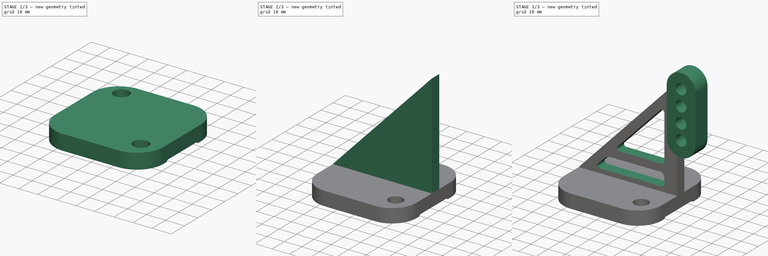
[diagram: build sequence overview — one tinted view per stage of 3, left to right]
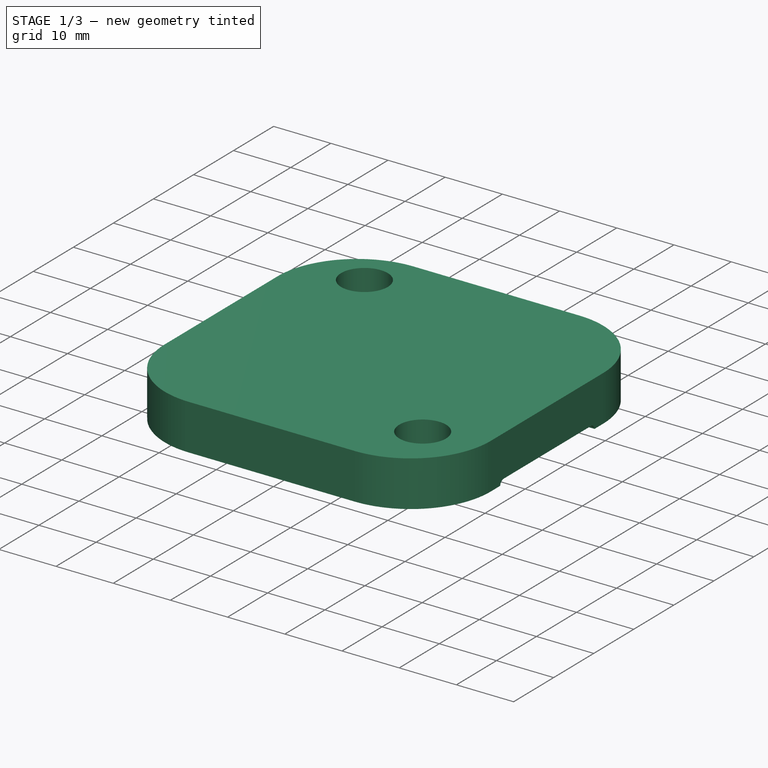
[diagram: stage 1 of 3 — iso view after this stage's code; geometry added in this stage tinted green]
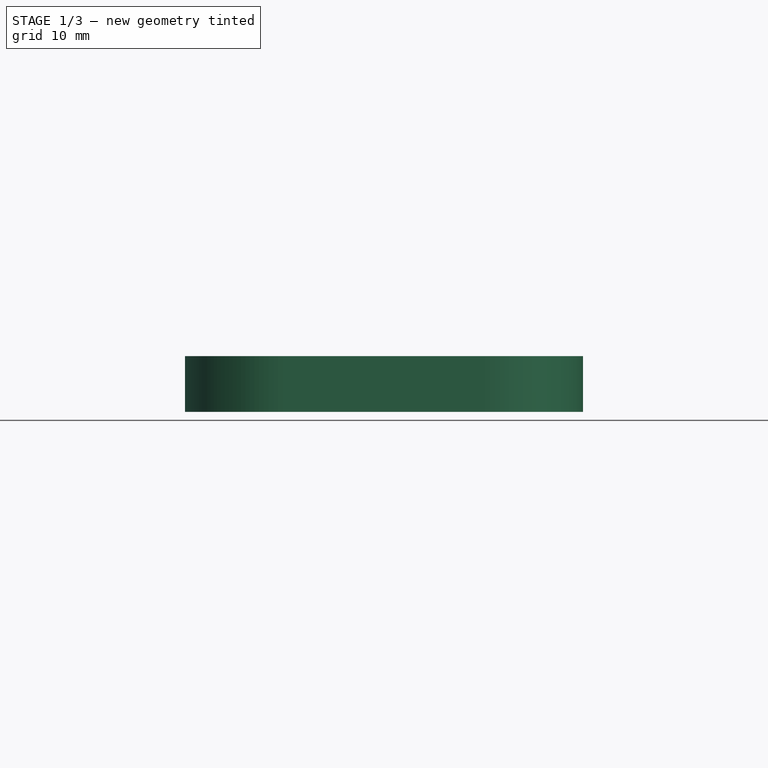
[diagram: stage 1 of 3 — front view after this stage's code; geometry added in this stage tinted green]
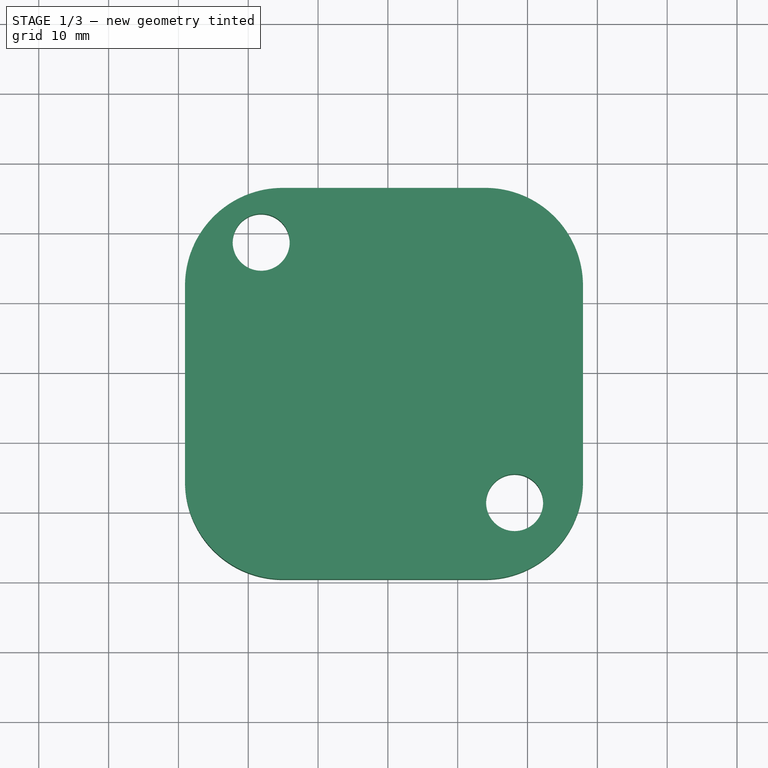
[diagram: stage 1 of 3 — top view after this stage's code; geometry added in this stage tinted green]
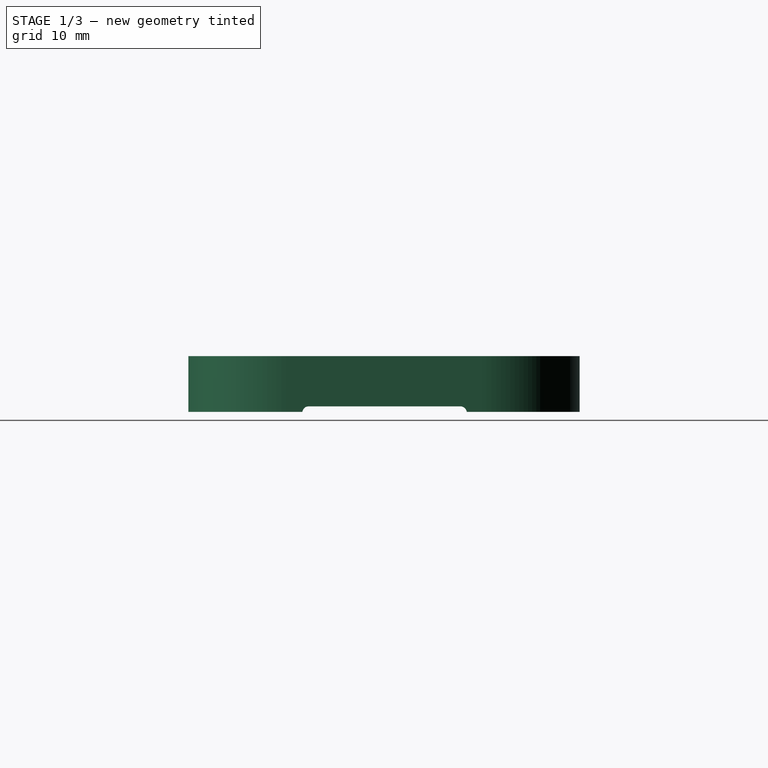
[diagram: stage 1 of 3 — right view after this stage's code; geometry added in this stage tinted green]
FCSTD DOCUMENT  (FreeCAD 0.21R33771 (Git))
Label: ex51
License: All rights reserved
LicenseURL: http://en.wikipedia.org/wiki/All_rights_reserved
objects: Sketcher::SketchObject×8, PartDesign::Pocket×5, PartDesign::Pad×3, PartDesign::Body×1
note: 25 computed .brp shape members not serialized (recipe doc carries the construction recipe); baked Part::Feature solids carry a one-line shape summary decoded from their .brp

FEATURE [Sketcher::SketchObject] Sketch
  FullyConstrained = false
  MapMode = 5
  Support = -> [XY_Plane]
  sketch-geometry (10):
    g0: ArcOfCircle CenterX=-15.0478 CenterY=12.4204 CenterZ=0 NormalX=0 NormalY=0 NormalZ=1 AngleXU=0 Radius=14.0127 StartAngle=1.5708 EndAngle=3.14159
    g1: LineSegment StartX=-15.0478 StartY=26.4331 StartZ=0 EndX=13.9331 EndY=26.4331 EndZ=0
    g2: ArcOfCircle CenterX=13.9331 CenterY=12.4204 CenterZ=0 NormalX=0 NormalY=0 NormalZ=1 AngleXU=0 Radius=14.0127 StartAngle=1e-16 EndAngle=1.5708
    g3: LineSegment StartX=27.9459 StartY=12.4204 StartZ=0 EndX=27.9459 EndY=-15.6051 EndZ=0
    g4: ArcOfCircle CenterX=13.9331 CenterY=-15.6051 CenterZ=0 NormalX=0 NormalY=0 NormalZ=1 AngleXU=0 Radius=14.0127 StartAngle=4.71239 EndAngle=6.28319
    g5: LineSegment StartX=13.9331 StartY=-29.6178 StartZ=0 EndX=-15.0478 EndY=-29.6178 EndZ=0
    g6: ArcOfCircle CenterX=-15.0478 CenterY=-15.6051 CenterZ=0 NormalX=0 NormalY=0 NormalZ=1 AngleXU=0 Radius=14.0127 StartAngle=3.14159 EndAngle=4.71239
    g7: LineSegment StartX=-29.0605 StartY=-15.6051 StartZ=0 EndX=-29.0605 EndY=12.4204 EndZ=0
    g8: GeomPoint X=-29.0605 Y=26.4331 Z=0
    g9: GeomPoint X=27.9459 Y=-29.6178 Z=0
  constraints (19):
    c: Tangent(g0,g1) = 1.5708
    c: Tangent(g1,g2) = 1.5708
    c: Tangent(g2,g3) = 1.5708
    c: Tangent(g3,g4) = 1.5708
    c: Tangent(g4,g5) = 1.5708
    c: Tangent(g5,g6) = 1.5708
    c: Tangent(g6,g7) = 1.5708
    c: Tangent(g7,g0) = 1.5708
    c: Horizontal(g1)
    c: Horizontal(g5)
    c: Vertical(g3)
    c: Vertical(g7)
    c: Equal(g0,g2)
    c: Equal(g2,g4)
    c: Equal(g4,g6)
    c: PointOnObject(g8,g1)
    c: PointOnObject(g8,g7)
    c: PointOnObject(g9,g3)
    c: PointOnObject(g9,g5)
FEATURE [PartDesign::Pad] Pad
  Direction = (0,0,1)
  Length = 8
  Length2 = 10
  Profile = -> Sketch
  ReferenceAxis = -> Sketch [N_Axis]
  Refine = true
  Type = 0
FEATURE [Sketcher::SketchObject] Sketch001
  FullyConstrained = false
  MapMode = 5
  Placement = pos=(27.9459,0,0) rot=(0.57735,0.57735,0.57735;2.0944rad)
  Support = -> [Pad]
  sketch-geometry (10):
    g0: ArcOfCircle CenterX=-12.3806 CenterY=-0.119425 CenterZ=0 NormalX=0 NormalY=0 NormalZ=1 AngleXU=0 Radius=0.915605 StartAngle=1.5708 EndAngle=3.14159
    g1: LineSegment StartX=-12.3806 StartY=0.79618 StartZ=0 EndX=9.3551 EndY=0.79618 EndZ=0
    g2: ArcOfCircle CenterX=9.3551 CenterY=-0.119425 CenterZ=0 NormalX=0 NormalY=0 NormalZ=1 AngleXU=0 Radius=0.915605 StartAngle=1e-16 EndAngle=1.5708
    g3: LineSegment StartX=10.2707 StartY=-0.119425 StartZ=0 EndX=10.2707 EndY=-1.95064 EndZ=0
    g4: ArcOfCircle CenterX=9.3551 CenterY=-1.95064 CenterZ=0 NormalX=0 NormalY=0 NormalZ=1 AngleXU=0 Radius=0.915605 StartAngle=4.71239 EndAngle=6.28319
    g5: LineSegment StartX=9.3551 StartY=-2.86624 StartZ=0 EndX=-12.3806 EndY=-2.86624 EndZ=0
    g6: ArcOfCircle CenterX=-12.3806 CenterY=-1.95064 CenterZ=0 NormalX=0 NormalY=0 NormalZ=1 AngleXU=0 Radius=0.915605 StartAngle=3.14159 EndAngle=4.71239
    g7: LineSegment StartX=-13.2962 StartY=-1.95064 StartZ=0 EndX=-13.2962 EndY=-0.119425 EndZ=0
    g8: GeomPoint X=-13.2962 Y=0.79618 Z=0
    g9: GeomPoint X=10.2707 Y=-2.86624 Z=0
  constraints (19):
    c: Tangent(g0,g1) = 1.5708
    c: Tangent(g1,g2) = 1.5708
    c: Tangent(g2,g3) = 1.5708
    c: Tangent(g3,g4) = 1.5708
    c: Tangent(g4,g5) = 1.5708
    c: Tangent(g5,g6) = 1.5708
    c: Tangent(g6,g7) = 1.5708
    c: Tangent(g7,g0) = 1.5708
    c: Horizontal(g1)
    c: Horizontal(g5)
    c: Vertical(g3)
    c: Vertical(g7)
    c: Equal(g0,g2)
    c: Equal(g2,g4)
    c: Equal(g4,g6)
    c: PointOnObject(g8,g1)
    c: PointOnObject(g8,g7)
    c: PointOnObject(g9,g3)
    c: PointOnObject(g9,g5)
FEATURE [PartDesign::Pocket] Pocket
  BaseFeature = -> Pad
  Direction = (-1,0,0)
  Length = 5
  Length2 = 5
  Profile = -> Sketch001
  ReferenceAxis = -> Sketch001 [N_Axis]
  Refine = true
  Type = 1
FEATURE [Sketcher::SketchObject] Sketch002
  FullyConstrained = false
  MapMode = 5
  Placement = pos=(0,0,8) rot=(0,0,1;0rad)
  Support = -> [Pocket]
  sketch-geometry (2):
    g0: Circle CenterX=-18.1489 CenterY=18.6455 CenterZ=0 NormalX=0 NormalY=0 NormalZ=1 AngleXU=0 Radius=4.08369
    g1: Circle CenterX=18.1489 CenterY=-18.6455 CenterZ=0 NormalX=0 NormalY=0 NormalZ=1 AngleXU=0 Radius=4.08369
  constraints (2):
    c: Equal(g0,g1)
    c: Symmetric(g0,g1,g-1)
FEATURE [PartDesign::Pocket] Pocket001
  BaseFeature = -> Pocket
  Direction = (0,0,-1)
  Length = 5
  Length2 = 5
  Profile = -> Sketch002
  ReferenceAxis = -> Sketch002 [N_Axis]
  Refine = true
  Type = 1
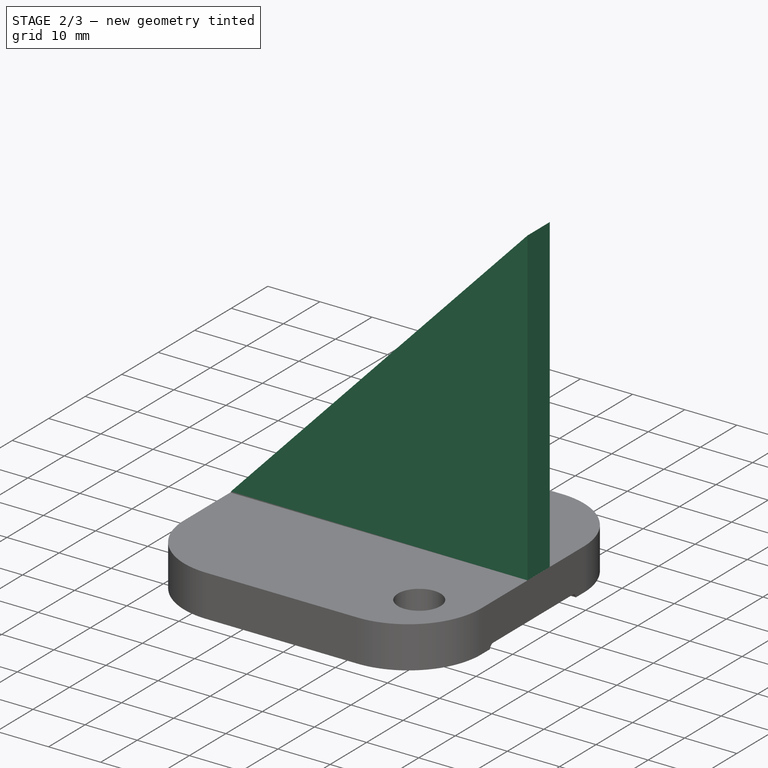
[diagram: stage 2 of 3 — iso view after this stage's code; geometry added in this stage tinted green]
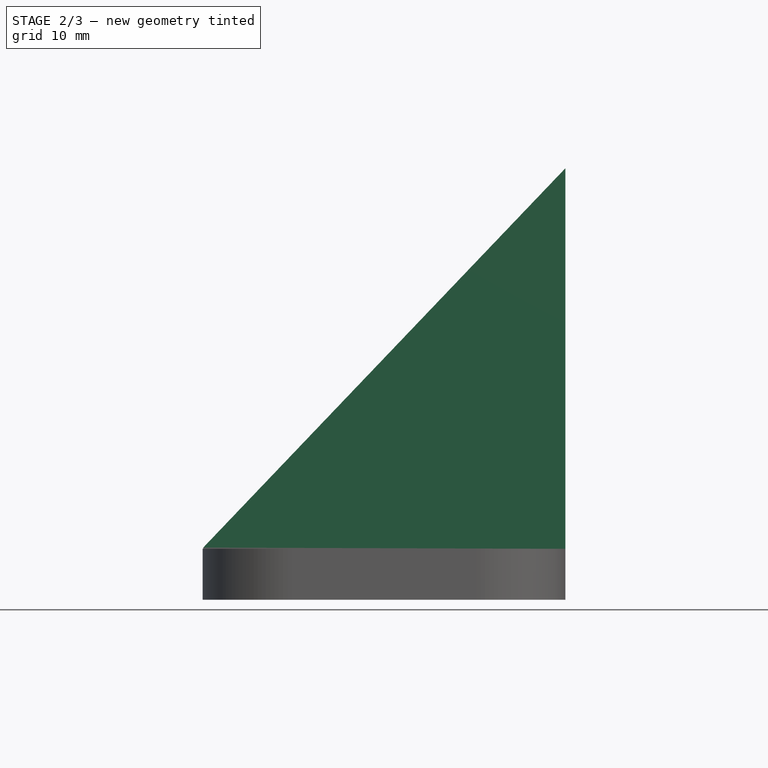
[diagram: stage 2 of 3 — front view after this stage's code; geometry added in this stage tinted green]
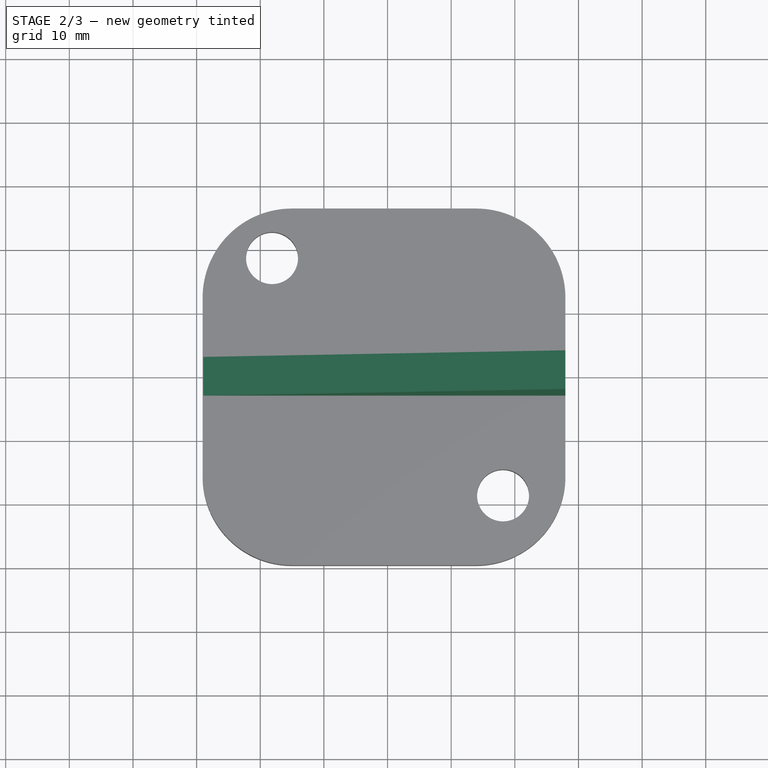
[diagram: stage 2 of 3 — top view after this stage's code; geometry added in this stage tinted green]
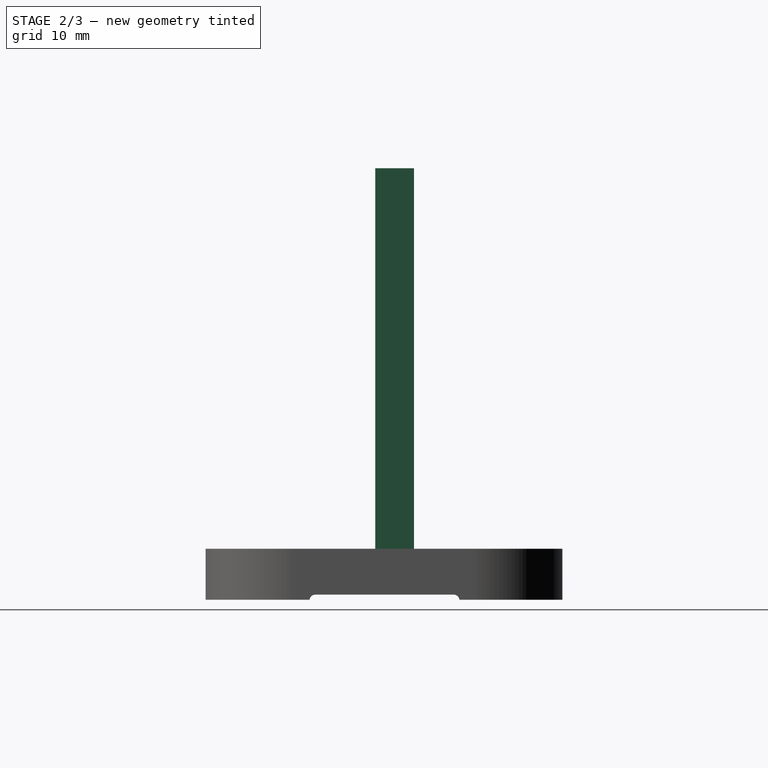
[diagram: stage 2 of 3 — right view after this stage's code; geometry added in this stage tinted green]
FEATURE [Sketcher::SketchObject] Sketch003
  FullyConstrained = false
  MapMode = 5
  Placement = pos=(0,0,8) rot=(0,0,1;0rad)
  Support = -> [Pocket001]
  sketch-geometry (4):
    g0: LineSegment StartX=-28.9634 StartY=3.1155 StartZ=0 EndX=27.936 EndY=3.1155 EndZ=0
    g1: LineSegment StartX=27.936 StartY=3.1155 StartZ=0 EndX=27.936 EndY=-2.96861 EndZ=0
    g2: LineSegment StartX=27.936 StartY=-2.96861 StartZ=0 EndX=-28.9634 EndY=-2.96861 EndZ=0
    g3: LineSegment StartX=-28.9634 StartY=-2.96861 StartZ=0 EndX=-28.9634 EndY=3.1155 EndZ=0
  constraints (8):
    c: Coincident(g0,g1)
    c: Coincident(g1,g2)
    c: Coincident(g2,g3)
    c: Coincident(g3,g0)
    c: Horizontal(g0)
    c: Horizontal(g2)
    c: Vertical(g1)
    c: Vertical(g3)
FEATURE [PartDesign::Pad] Pad001
  BaseFeature = -> Pocket001
  Direction = (0,0,1)
  Length = 60
  Length2 = 10
  Profile = -> Sketch003
  ReferenceAxis = -> Sketch003 [N_Axis]
  Refine = true
  Type = 0
FEATURE [Sketcher::SketchObject] Sketch004
  FullyConstrained = false
  MapMode = 5
  Placement = pos=(0,-2.96861,0) rot=(1,0,0;1.5708rad)
  Support = -> [Pad001]
  sketch-geometry (3):
    g0: LineSegment StartX=32.2523 StartY=72.3109 StartZ=0 EndX=-33.0459 EndY=3.91288 EndZ=0
    g1: LineSegment StartX=-33.0459 StartY=72.3109 StartZ=0 EndX=-33.0459 EndY=3.91288 EndZ=0
    g2: LineSegment StartX=-33.0459 StartY=72.3109 StartZ=0 EndX=32.2523 EndY=72.3109 EndZ=0
  constraints (5):
    c: Coincident(g1,g0)
    c: Vertical(g1)
    c: Coincident(g2,g1)
    c: Horizontal(g2)
    c: Coincident(g2,g0)
FEATURE [PartDesign::Pocket] Pocket002
  BaseFeature = -> Pad001
  Direction = (0,1,-2e-16)
  Length = 5
  Length2 = 5
  Profile = -> Sketch004
  ReferenceAxis = -> Sketch004 [N_Axis]
  Refine = true
  Type = 1
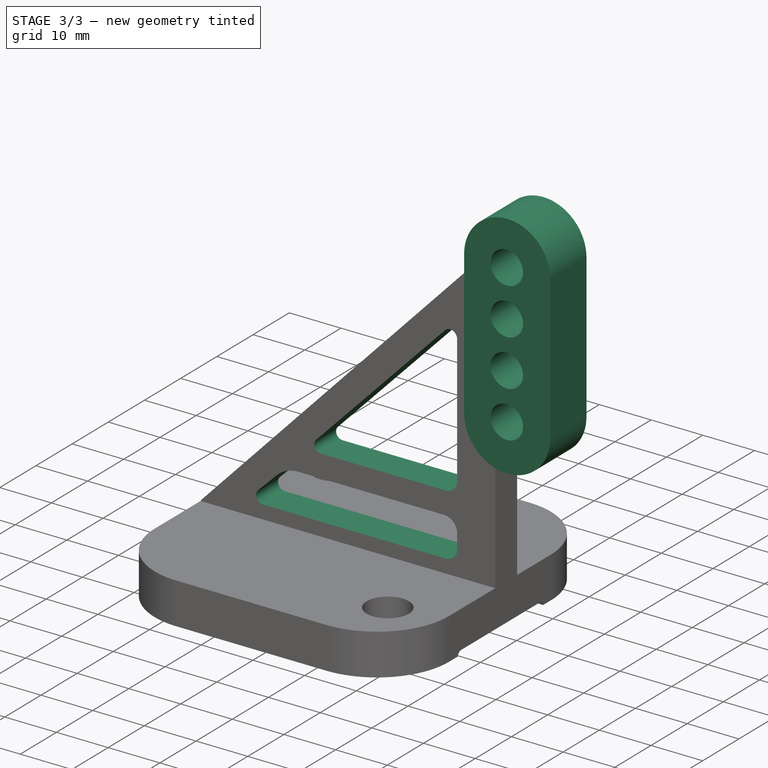
[diagram: stage 3 of 3 — iso view after this stage's code; geometry added in this stage tinted green]
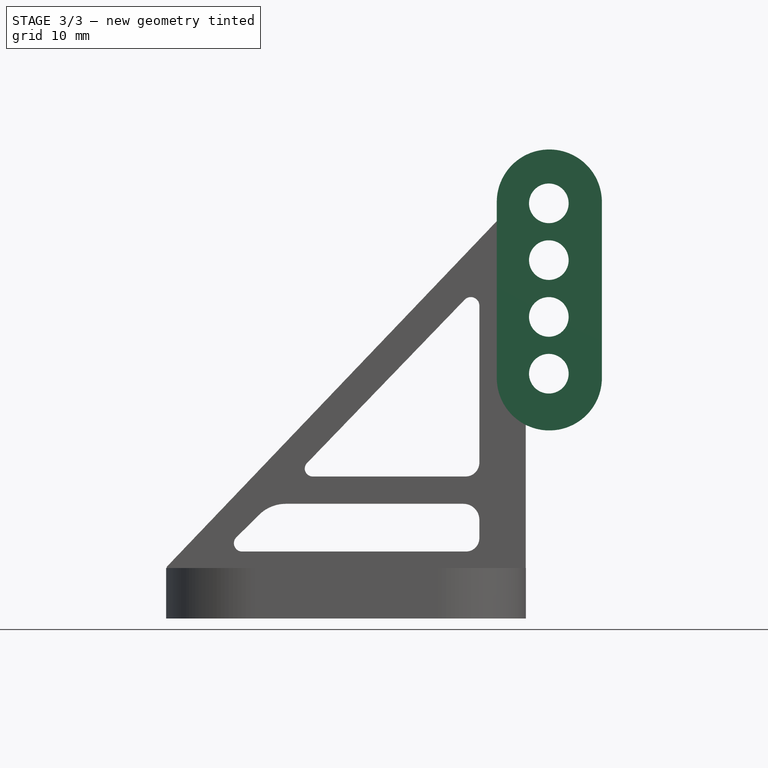
[diagram: stage 3 of 3 — front view after this stage's code; geometry added in this stage tinted green]
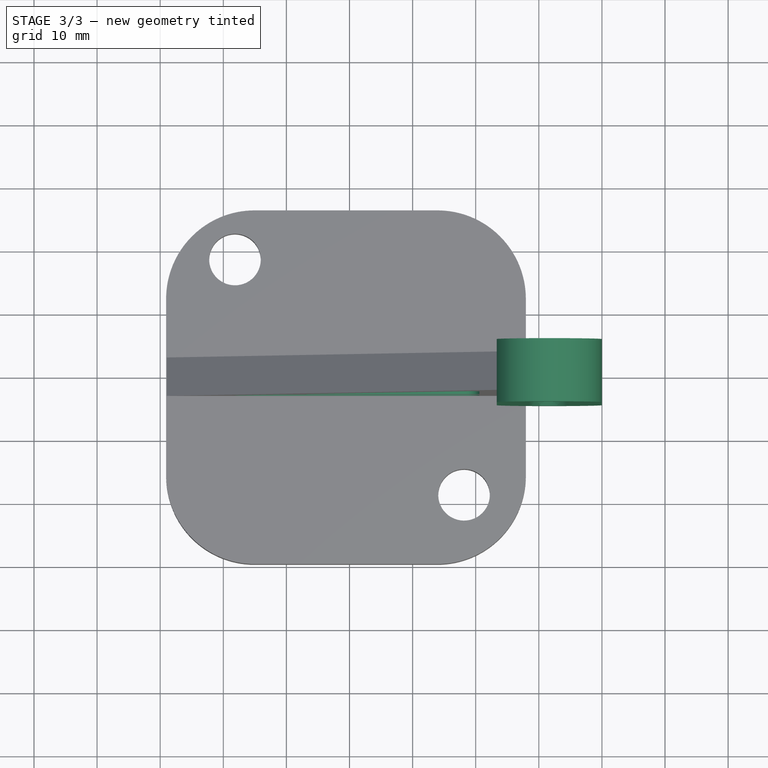
[diagram: stage 3 of 3 — top view after this stage's code; geometry added in this stage tinted green]
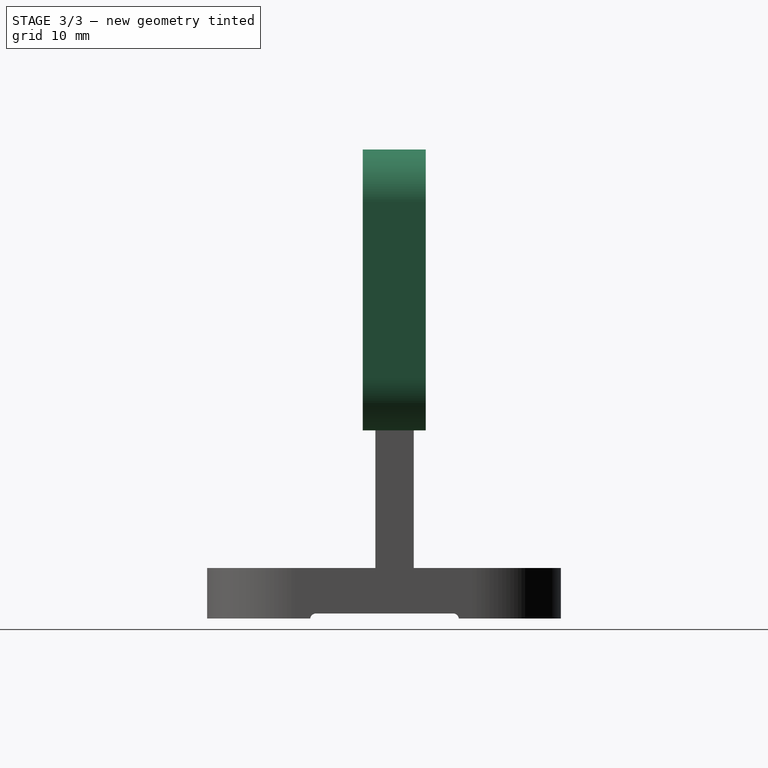
[diagram: stage 3 of 3 — right view after this stage's code; geometry added in this stage tinted green]
FEATURE [Sketcher::SketchObject] Sketch005
  FullyConstrained = false
  MapMode = 5
  Placement = pos=(0,-2.96861,0) rot=(1,0,0;1.5708rad)
  Support = -> [Pocket002]
  sketch-geometry (14):
    g0: LineSegment StartX=20.5766 StartY=49.5815 StartZ=0 EndX=20.5766 EndY=24.689 EndZ=0
    g1: LineSegment StartX=18.3976 StartY=22.5099 StartZ=0 EndX=-5.84437 EndY=22.5099 EndZ=0
    g2: LineSegment StartX=-6.7417 StartY=24.6226 StartZ=0 EndX=18.2467 EndY=50.5222 EndZ=0
    g3: LineSegment StartX=-14.3464 StartY=16.4193 StartZ=0 EndX=-17.9322 EndY=12.8611 EndZ=0
    g4: LineSegment StartX=-17.0061 StartY=10.6132 StartZ=0 EndX=18.4557 EndY=10.6132 EndZ=0
    g5: LineSegment StartX=20.5766 StartY=12.7342 StartZ=0 EndX=20.5766 EndY=15.6432 EndZ=0
    g6: LineSegment StartX=18.0419 StartY=18.1779 StartZ=0 EndX=-10.0778 EndY=18.1779 EndZ=0
    g7: ArcOfCircle CenterX=-17.0061 CenterY=11.9279 CenterZ=0 NormalX=0 NormalY=0 NormalZ=1 AngleXU=0 Radius=1.3147 StartAngle=2.35235 EndAngle=4.71239
    g8: ArcOfCircle CenterX=-10.0778 CenterY=12.1178 CenterZ=0 NormalX=0 NormalY=0 NormalZ=1 AngleXU=0 Radius=6.06008 StartAngle=1.5708 EndAngle=2.35235
    g9: ArcOfCircle CenterX=18.0419 CenterY=15.6432 CenterZ=0 NormalX=0 NormalY=0 NormalZ=1 AngleXU=0 Radius=2.5347 StartAngle=2e-16 EndAngle=1.5708
    g10: ArcOfCircle CenterX=18.4557 CenterY=12.7342 CenterZ=0 NormalX=0 NormalY=0 NormalZ=1 AngleXU=0 Radius=2.12097 StartAngle=4.71239 EndAngle=6.28319
    g11: ArcOfCircle CenterX=18.3976 CenterY=24.689 CenterZ=0 NormalX=0 NormalY=0 NormalZ=1 AngleXU=0 Radius=2.17907 StartAngle=4.71239 EndAngle=6.28319
    g12: ArcOfCircle CenterX=-5.84437 CenterY=23.7568 CenterZ=0 NormalX=0 NormalY=0 NormalZ=1 AngleXU=0 Radius=1.2469 StartAngle=2.3741 EndAngle=4.71239
    g13: ArcOfCircle CenterX=19.2217 CenterY=49.5815 CenterZ=0 NormalX=0 NormalY=0 NormalZ=1 AngleXU=0 Radius=1.3549 StartAngle=0 EndAngle=2.3741
  constraints (19):
    c: Vertical(g0)
    c: Horizontal(g1)
    c: Horizontal(g4)
    c: Horizontal(g6)
    c: Vertical(g5)
    c: Tangent(g3,g7) = -1.5708
    c: Tangent(g4,g7) = -1.5708
    c: Tangent(g6,g8) = -1.5708
    c: Tangent(g3,g8) = -1.5708
    c: Tangent(g6,g9) = -1.5708
    c: Tangent(g5,g9) = -1.5708
    c: Tangent(g5,g10) = -1.5708
    c: Tangent(g4,g10) = -1.5708
    c: Tangent(g1,g11) = 1.5708
    c: Tangent(g0,g11) = 1.5708
    c: Tangent(g2,g12) = 1.5708
    c: Tangent(g1,g12) = 1.5708
    c: Tangent(g2,g13) = 1.5708
    c: Tangent(g0,g13) = 1.5708
FEATURE [PartDesign::Pocket] Pocket003
  BaseFeature = -> Pocket002
  Direction = (0,1,-2e-16)
  Length = 5
  Length2 = 5
  Profile = -> Sketch005
  ReferenceAxis = -> Sketch005 [N_Axis]
  Refine = true
  Type = 1
FEATURE [Sketcher::SketchObject] Sketch006
  AttachmentOffset = pos=(0,0,-3) rot=(0,0,1;0rad)
  FullyConstrained = false
  MapMode = 5
  Placement = pos=(0,0.031386,-7e-16) rot=(1,0,0;1.5708rad)
  Support = -> [Pocket003]
  sketch-geometry (4):
    g0: ArcOfCircle CenterX=31.6658 CenterY=65.9995 CenterZ=0 NormalX=0 NormalY=0 NormalZ=1 AngleXU=0 Radius=8.32902 StartAngle=1e-16 EndAngle=3.14159
    g1: ArcOfCircle CenterX=31.6658 CenterY=38.1332 CenterZ=0 NormalX=0 NormalY=0 NormalZ=1 AngleXU=0 Radius=8.32902 StartAngle=3.14159 EndAngle=6.28319
    g2: LineSegment StartX=23.3368 StartY=65.9995 StartZ=0 EndX=23.3368 EndY=38.1332 EndZ=0
    g3: LineSegment StartX=39.9948 StartY=38.1332 StartZ=0 EndX=39.9948 EndY=65.9995 EndZ=0
  constraints (6):
    c: Tangent(g0,g2) = -1.5708
    c: Tangent(g2,g1) = -1.5708
    c: Tangent(g1,g3) = -1.5708
    c: Tangent(g3,g0) = -1.5708
    c: Equal(g0,g1)
    c: Vertical(g2)
FEATURE [PartDesign::Pad] Pad002
  BaseFeature = -> Pocket003
  Direction = (0,-1,2e-16)
  Length = 10
  Length2 = 10
  Midplane = true
  Profile = -> Sketch006
  ReferenceAxis = -> Sketch006 [N_Axis]
  Refine = true
  Type = 0
FEATURE [Sketcher::SketchObject] Sketch007
  FullyConstrained = false
  MapMode = 5
  Placement = pos=(0,-4.96861,1.1e-15) rot=(1,0,0;1.5708rad)
  Support = -> [Pad002]
  sketch-geometry (4):
    g0: Circle CenterX=31.5855 CenterY=65.7927 CenterZ=0 NormalX=0 NormalY=0 NormalZ=1 AngleXU=0 Radius=3.14062
    g1: Circle CenterX=31.5855 CenterY=56.7927 CenterZ=0 NormalX=0 NormalY=0 NormalZ=1 AngleXU=0 Radius=3.14062
    g2: Circle CenterX=31.5855 CenterY=47.7927 CenterZ=0 NormalX=0 NormalY=0 NormalZ=1 AngleXU=0 Radius=3.14062
    g3: Circle CenterX=31.5855 CenterY=38.7927 CenterZ=0 NormalX=0 NormalY=0 NormalZ=1 AngleXU=0 Radius=3.14062
  constraints (9):
    c: Equal(g0,g1)
    c: Equal(g1,g2)
    c: Equal(g2,g3)
    c: Vertical(g1,g0)
    c: Vertical(g0,g2)
    c: Vertical(g2,g3)
    c: DistanceY(g1,g0) = 9
    c: DistanceY(g2,g1) = 9
    c: DistanceY(g3,g2) = 9
FEATURE [PartDesign::Pocket] Pocket004
  BaseFeature = -> Pad002
  Direction = (0,1,-2e-16)
  Length = 5
  Length2 = 5
  Profile = -> Sketch007
  ReferenceAxis = -> Sketch007 [N_Axis]
  Refine = true
  Type = 1
FEATURE [PartDesign::Body] Body
  Group = -> [Sketch,Pad,Sketch001,Pocket,Sketch002,Pocket001,Sketch003,Pad001,Sketch004,Pocket002,Sketch005,Pocket003,Sketch006,Pad002,Sketch007,Pocket004]
  Origin = -> Origin
  Tip = -> Pocket004
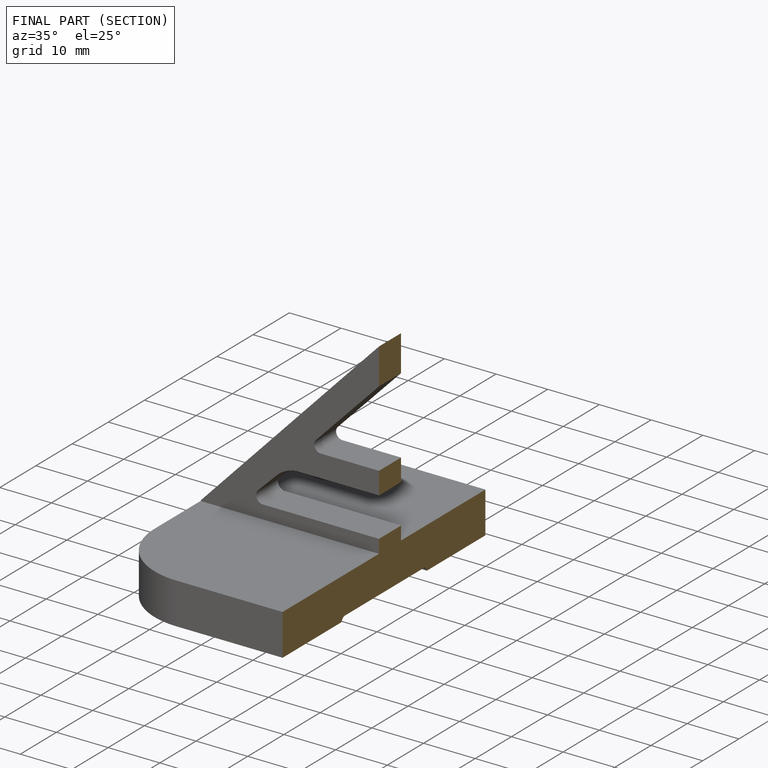
[diagram: finished part — half-section view (interior)]
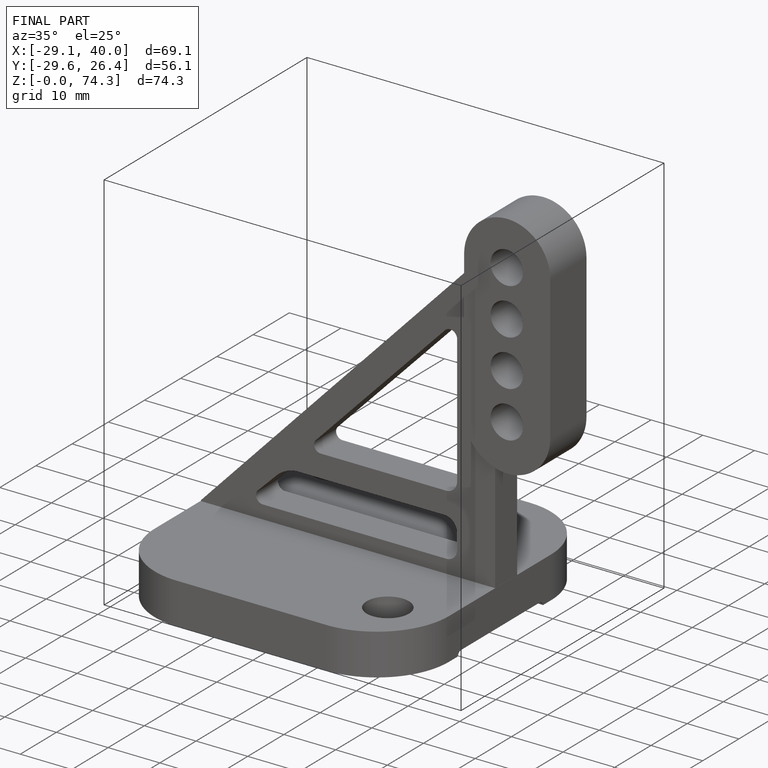
[diagram: finished part — iso view with bounding-box wireframe]
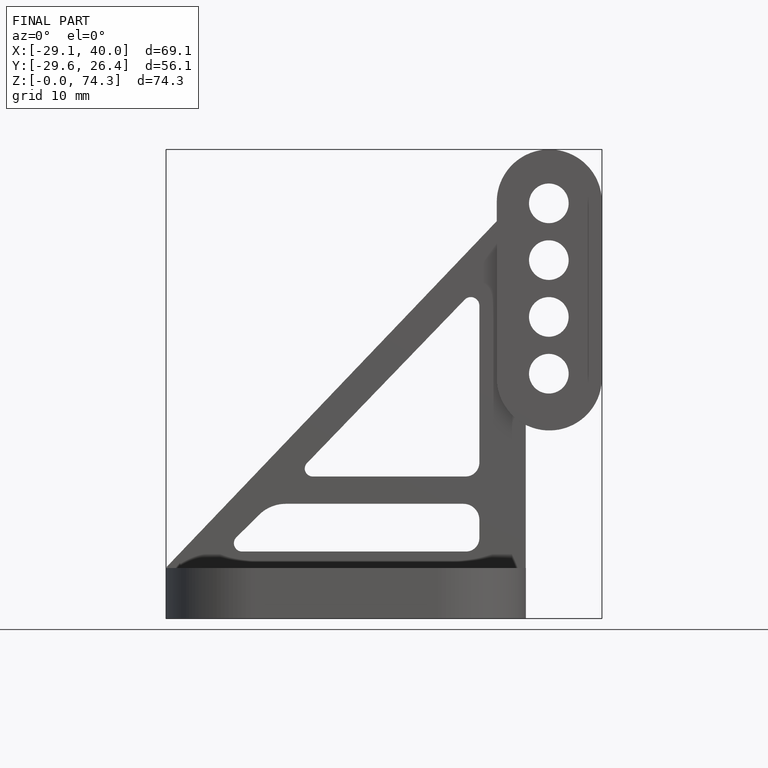
[diagram: finished part — front view with bounding-box wireframe]
